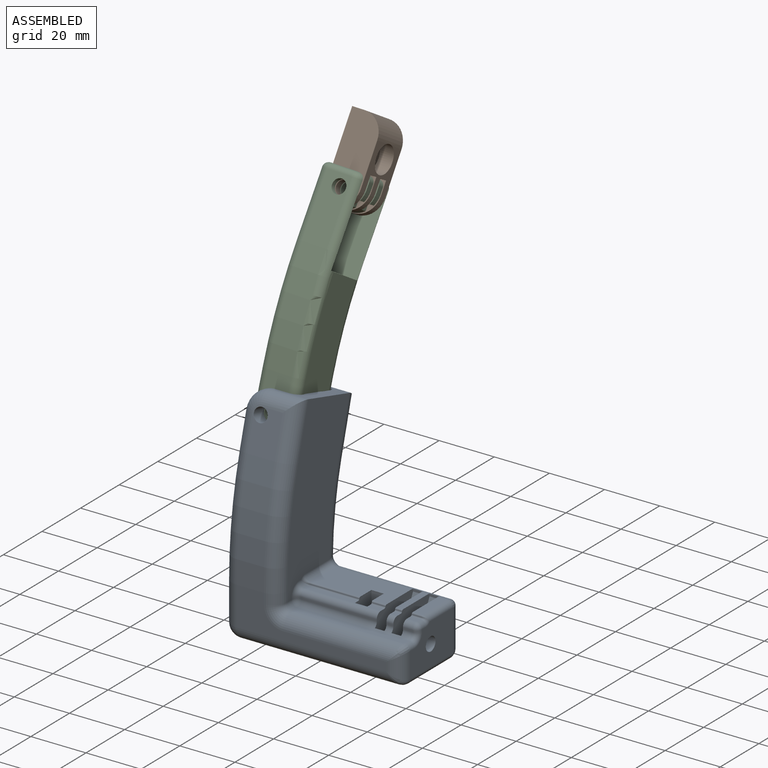
[diagram: assembled view]
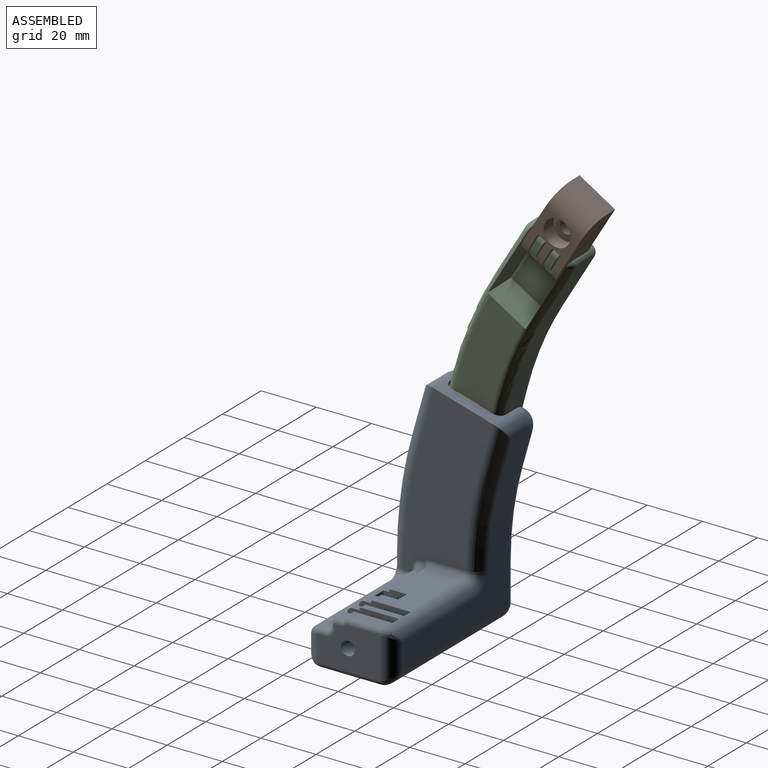
[diagram: assembled view, second angle]
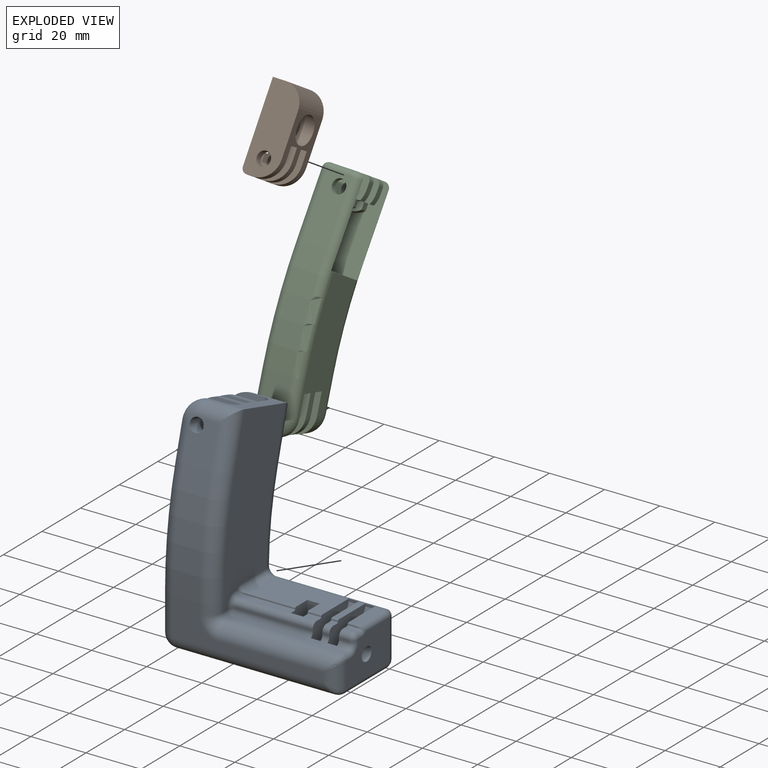
[diagram: exploded view]
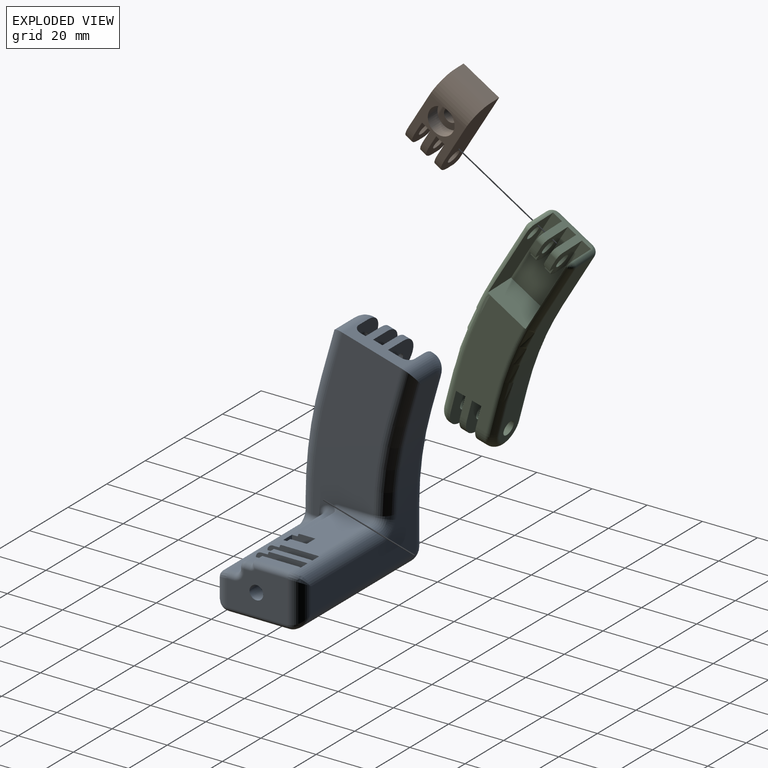
[diagram: exploded view, second angle]
ASSEMBLY  parts=3 mates=2
PART A: 139 faces, bbox 64.5x43.3x79.1 mm
  f0: plane 12.8x3.5mm, normal (0,0,1), area 44.8mm2, adj f64,f77,f90,f113
  f1: plane 12.8x2.5mm, normal (0,0,1), area 32mm2, adj f55,f71,f78,f113
  f2: plane 62.45x32.09mm, normal (1,0,0), area 1230.1mm2, adj f4,f98,f100,f101,f102,f104,f105,f107
  f3: plane 57.5x22mm, normal (0,0,-1), area 1041.3mm2, adj f21,f24,f27,f41,f44,f88,f106,f119
  f4: plane 21.17x12.5mm, normal (0,0.27,0.96), area 152.6mm2, adj f2,f13,f14,f15,f16,f19,f22,f24
  f5: plane 59.63x8.55mm, normal (-1,0,0), area 30.2mm2, adj f25,f26,f27,f33,f114,f116,f118,f119
  f6: plane 65.48x9.36mm, normal (-1,0,0), area 33.2mm2, adj f21,f22,f23,f28,f130,f132,f134,f135
  f7: plane 54.5x14mm, normal (0,1,0), area 550.8mm2, adj f10,f111,f113,f117,f118,f122
  f8: plane 54.5x14mm, normal (0,-1,0), area 295.1mm2, adj f9,f125,f127,f129,f133,f135,f138
  f9: cylinder r=149.95mm len=40.82mm, axis (-1,0,0), area 413.4mm2, adj f8,f11,f123,f132
  f10: cylinder r=117.95mm len=32.11mm, axis (-1,0,0), area 325.4mm2, adj f7,f12,f107,f109,f116
  f11: plane 14.43x10mm, normal (0,-0.96,0.27), area 129mm2, adj f9,f36,f124,f126,f130
  f12: plane 14.43x10mm, normal (0,0.96,-0.27), area 148.7mm2, adj f10,f108,f110,f112,f114
  f13: plane 3.44x1.19mm, normal (-1,0,0), area 0.9mm2, adj f4,f14,f15,f20
  f14: plane 15.5x14.19mm, normal (0,-0.96,0.27), area 184.7mm2, adj f4,f13,f17,f20,f24,f31,f32,f38
  f15: plane 15.5x14.19mm, normal (0,0.96,-0.27), area 184.7mm2, adj f4,f13,f18,f20,f24,f29,f30,f37
  f16: plane 15.5x14.19mm, normal (0,0.96,-0.27), area 184.8mm2, adj f4,f17,f24,f31,f32,f38
  f17: plane 8x2.41mm, normal (0,-0.27,-0.96), area 20mm2, adj f14,f16,f24,f31
  f18: plane 8x2.41mm, normal (0,-0.27,-0.96), area 20mm2, adj f15,f19,f24,f29
  f19: plane 15.5x14.19mm, normal (0,-0.96,0.27), area 184.8mm2, adj f4,f18,f24,f29,f30,f37
  f20: plane 3.37x0.95mm, normal (0,-0.27,-0.96), area 1.7mm2, adj f13,f14,f15,f24
  f21: plane 19x12.5mm, normal (0,1,0), area 232.1mm2, adj f3,f6,f23,f44,f134
  f22: plane 19.25x12.5mm, normal (0,0.96,-0.27), area 218.3mm2, adj f4,f6,f23,f28,f36,f42
  f23: cylinder r=144.45mm len=39.32mm, axis (-1,0,0), area 497.8mm2, adj f6,f21,f22,f43
  f24: plane 76.75x25.22mm, normal (-1,0,0), area 1064.3mm2, adj f3,f4,f14,f15,f16,f17,f18,f19
  f25: plane 19.25x12.5mm, normal (0,-0.96,0.27), area 218.3mm2, adj f4,f5,f26,f33,f34,f39
  f26: cylinder r=123.45mm len=33.6mm, axis (-1,0,0), area 425.4mm2, adj f5,f25,f27,f40
  f27: plane 19x12.5mm, normal (0,-1,0), area 232.1mm2, adj f3,f5,f26,f41,f119
  f28: cylinder r=7.5mm len=7.5mm, axis (0,-0.96,0.27), area 5.9mm2, adj f4,f6,f22,f128
  f29: cylinder r=7.5mm len=7.78mm, axis (0,-0.96,0.27), area 29.1mm2, adj f15,f18,f19,f30
  f30: cylinder r=7.5mm len=7.78mm, axis (0,-0.96,0.27), area 29.1mm2, adj f4,f15,f19,f29
  f31: cylinder r=7.5mm len=7.78mm, axis (0,-0.96,0.27), area 29.1mm2, adj f14,f16,f17,f32
  f32: cylinder r=7.5mm len=7.78mm, axis (0,-0.96,0.27), area 29.1mm2, adj f4,f14,f16,f31
  f33: cylinder r=7.5mm len=7.5mm, axis (0,-0.96,0.27), area 5.9mm2, adj f4,f5,f25,f112
  f34: cylinder r=2.5mm len=5.22mm, axis (0,0.96,-0.27), area 23.6mm2, adj f25,f35
  f35: plane 5x4.81mm, normal (0,-0.96,0.27), area 19.6mm2, adj f34
  f36: cylinder r=2.5mm len=6.65mm, axis (0,0.96,-0.27), area 86.4mm2, adj f11,f22,f128
  f37: cylinder r=2.5mm len=5.49mm, axis (0,0.96,-0.27), area 39.3mm2, adj f15,f19
  f38: cylinder r=2.5mm len=5.49mm, axis (0,0.96,-0.27), area 39.3mm2, adj f14,f16
  f39: cylinder r=3mm len=20.06mm, axis (0,-0.27,-0.96), area 94.2mm2, adj f4,f24,f25,f40
  f40: torus R=126.45mm, axis (-1,0,0), area 161.8mm2, adj f24,f26,f39,f41
  f41: cylinder r=3mm len=19mm, axis (0,0,-1), area 89.5mm2, adj f3,f24,f27,f40
  f42: cylinder r=3mm len=20.06mm, axis (0,0.27,0.96), area 94.2mm2, adj f4,f22,f24,f43
  f43: torus R=141.45mm, axis (-1,0,0), area 186.2mm2, adj f23,f24,f42,f44
  f44: cylinder r=3mm len=19mm, axis (0,0,1), area 89.5mm2, adj f3,f21,f24,f43
  f45: plane 27.5x2mm, normal (0,0,1), area 47.1mm2, adj f46,f47,f58,f72,f82,f86,f87,f102
  f46: cylinder r=0.5mm len=18mm, axis (1,0,0), area 14.1mm2, adj f45,f48,f86,f103
  f47: cylinder r=0.5mm len=5mm, axis (1,0,0), area 3.9mm2, adj f45,f49,f72,f87
  f48: cylinder r=0.5mm len=18mm, axis (-1,0,0), area 14.1mm2, adj f46,f51,f86,f104
  f49: cylinder r=0.5mm len=5mm, axis (-1,0,0), area 3.9mm2, adj f47,f51,f72,f87
  f50: cylinder r=2.5mm len=20mm, axis (-1,0,0), area 314.2mm2, adj f86,f89
  f51: plane 27.5x12.8mm, normal (0,0,1), area 326.1mm2, adj f48,f49,f72,f85,f86,f87,f105,f113
  f52: plane 2.5x2mm, normal (0,0,1), area 5mm2, adj f54,f56,f71,f78
  f53: plane 2.5x0.75mm, normal (0,-1,0), area 1.9mm2, adj f56,f66,f71,f78
  f54: cylinder r=0.5mm len=2.5mm, axis (1,0,0), area 2mm2, adj f52,f55,f71,f78
  f55: cylinder r=0.5mm len=2.5mm, axis (-1,0,0), area 2mm2, adj f1,f54,f71,f78
  f56: cylinder r=2mm len=2.5mm, axis (-1,0,0), area 7.9mm2, adj f52,f53,f71,f78
  f57: plane 27.5x0.75mm, normal (0,-1,0), area 20.6mm2, adj f58,f66,f72,f100
  f58: cylinder r=2mm len=27.5mm, axis (-1,0,0), area 86.4mm2, adj f45,f57,f72,f101
  f59: plane 3.5x2mm, normal (0,0,1), area 7mm2, adj f63,f65,f77,f93
  f60: plane 3.5x0.75mm, normal (0,-1,0), area 2.6mm2, adj f65,f66,f77,f95
  f61: plane 40.5x2.2mm, normal (0,0,1), area 89.1mm2, adj f66,f97,f98,f129
  f62: plane 22x15mm, normal (1,0,0), area 274.8mm2, adj f80,f90,f92,f93,f95,f96,f97,f106
  f63: cylinder r=0.5mm len=3.5mm, axis (1,0,0), area 2.7mm2, adj f59,f64,f77,f92
  f64: cylinder r=0.5mm len=3.5mm, axis (-1,0,0), area 2.7mm2, adj f0,f63,f77,f91
  f65: cylinder r=2mm len=3.5mm, axis (-1,0,0), area 11mm2, adj f59,f60,f77,f94
  f66: cylinder r=2mm len=40.5mm, axis (1,0,0), area 112.6mm2, adj f53,f57,f60,f61,f67,f71,f72,f73
  f67: plane 4.02x3.5mm, normal (0,1,0), area 14.1mm2, adj f66,f68,f71,f72
  f68: cylinder r=7.5mm len=14.3mm, axis (-1,0,0), area 71mm2, adj f67,f69,f71,f72
  f69: plane 11.67x5.44mm, normal (0,-0.91,0.42), area 45.1mm2, adj f68,f70,f71,f72
  f70: plane 3.5x0.91mm, normal (0,-1,0), area 3.2mm2, adj f69,f71,f72,f113
  f71: plane 19.74x17mm, normal (-1,0,0), area 229.9mm2, adj f1,f52,f53,f54,f55,f56,f66,f67
  f72: plane 19.74x17mm, normal (1,0,0), area 229.9mm2, adj f45,f47,f49,f51,f57,f58,f66,f67
  f73: plane 4.02x3.5mm, normal (0,1,0), area 14.1mm2, adj f66,f74,f77,f78
  f74: cylinder r=7.5mm len=14.3mm, axis (-1,0,0), area 71mm2, adj f73,f75,f77,f78
  f75: plane 11.67x5.44mm, normal (0,-0.91,0.42), area 45.1mm2, adj f74,f76,f77,f78
  f76: plane 3.5x0.91mm, normal (0,-1,0), area 3.2mm2, adj f75,f77,f78,f113
  f77: plane 19.74x17mm, normal (-1,0,0), area 229.9mm2, adj f0,f59,f60,f63,f64,f65,f66,f73
  f78: plane 19.74x17mm, normal (1,0,0), area 229.9mm2, adj f1,f52,f53,f54,f55,f56,f66,f73
  f79: cylinder r=2.5mm len=5mm, axis (-1,0,0), area 39.3mm2, adj f71,f78
  f80: cylinder r=2.5mm len=5.5mm, axis (-1,0,0), area 86.4mm2, adj f62,f77
  f81: cylinder r=2.5mm len=5mm, axis (-1,0,0), area 78.5mm2, adj f72,f87
  f82: plane 10.95x4.5mm, normal (0,1,0), area 49.3mm2, adj f45,f83,f86,f87
  f83: plane 4.5x4.25mm, normal (0,0.5,0.87), area 18mm2, adj f82,f84,f86,f87,f88
  f84: plane 4.5x4.25mm, normal (0,-0.5,0.87), area 18mm2, adj f83,f85,f86,f87,f88
  f85: plane 11.95x4.5mm, normal (0,-1,0), area 53.8mm2, adj f51,f84,f86,f87
  f86: plane 14.41x8.5mm, normal (1,0,0), area 90.2mm2, adj f45,f46,f48,f50,f51,f82,f83,f84
  f87: plane 14.41x8.5mm, normal (-1,0,0), area 90.2mm2, adj f45,f47,f49,f51,f81,f82,f83,f84
  f88: cylinder r=1.5mm len=5.46mm, axis (0,0,1), area 48.5mm2, adj f3,f83,f84
  f89: plane 5x5mm, normal (1,0,0), area 19.6mm2, adj f50
  f90: cylinder r=2mm len=12.8mm, axis (0,-1,0), area 38.9mm2, adj f0,f62,f91,f115
  f91: bspline ~2x2mm, area 1.4mm2, adj f64,f90,f92
  f92: torus R=2.5mm, axis (1,0,0), area 4.5mm2, adj f62,f63,f91,f93
  f93: cylinder r=2mm len=2mm, axis (0,-1,0), area 6.3mm2, adj f59,f62,f92,f94
  f94: sphere r=2mm, area 6.3mm2, adj f65,f93,f95
  f95: cylinder r=2mm len=2mm, axis (0,0,-1), area 2.4mm2, adj f60,f62,f94,f96
  f96: torus R=4mm, axis (1,0,0), area 13.5mm2, adj f62,f66,f95,f97
  f97: cylinder r=2mm len=2.2mm, axis (0,-1,0), area 6.9mm2, adj f61,f62,f96,f131
  f98: cylinder r=2mm len=2.2mm, axis (0,-1,0), area 6.9mm2, adj f2,f61,f99,f127
  f99: sphere r=2mm, area 6.3mm2, adj f66,f98,f100
  f100: cylinder r=2mm len=2mm, axis (0,0,-1), area 2.4mm2, adj f2,f57,f99,f101
  f101: torus R=4mm, axis (-1,0,0), area 13.5mm2, adj f2,f58,f100,f102
  f102: cylinder r=2mm len=2mm, axis (0,-1,0), area 5mm2, adj f2,f45,f101,f103
  f103: bspline ~2x2mm, area 1.4mm2, adj f46,f102,f104
  f104: torus R=2.5mm, axis (-1,0,0), area 4.5mm2, adj f2,f48,f103,f105
  f105: cylinder r=2mm len=12.82mm, axis (0,-1,0), area 40.2mm2, adj f2,f51,f104,f109,f111
  f106: cylinder r=2mm len=22mm, axis (0,1,0), area 69.1mm2, adj f3,f62,f120,f136
  f107: torus R=122.95mm, axis (-1,0,0), area 244mm2, adj f2,f10,f108,f109
  f108: cylinder r=5mm len=20.61mm, axis (0,-0.27,-0.96), area 142.8mm2, adj f2,f12,f107,f110
  f109: bspline ~5.11x5.04mm, area 8.3mm2, adj f10,f105,f107,f111
  f110: cylinder r=5mm len=12.5mm, axis (1,0,0), area 83.9mm2, adj f4,f12,f108,f112
  f111: torus R=7mm, axis (0,-1,0), area 38.4mm2, adj f7,f105,f109,f113
  f112: torus R=2.5mm, axis (0,0.96,-0.27), area 70.1mm2, adj f12,f33,f110,f114
  f113: cylinder r=5mm len=40.5mm, axis (1,0,0), area 302.9mm2, adj f0,f1,f7,f51,f70,f71,f72,f76
  f114: cylinder r=5mm len=13.39mm, axis (0,-0.27,-0.96), area 98.2mm2, adj f5,f12,f112,f116
  f115: bspline ~5.23x5mm, area 16.7mm2, adj f90,f113,f117
  f116: torus R=122.95mm, axis (1,0,0), area 259.3mm2, adj f5,f10,f114,f118
  f117: cylinder r=5mm len=15mm, axis (0,0,-1), area 100.7mm2, adj f7,f62,f115,f120
  f118: cylinder r=5mm len=14mm, axis (0,0,-1), area 110mm2, adj f5,f7,f116,f121
  f119: cylinder r=5mm len=5mm, axis (0,1,0), area 3.9mm2, adj f3,f5,f27,f121
  f120: bspline ~5.91x5mm, area 16.7mm2, adj f106,f117,f122
  f121: sphere r=5mm, area 39.3mm2, adj f118,f119,f122
  f122: cylinder r=5mm len=57.5mm, axis (1,0,0), area 443mm2, adj f3,f7,f120,f121
  f123: torus R=144.95mm, axis (-1,0,0), area 320.7mm2, adj f2,f9,f124,f125
  f124: cylinder r=5mm len=20.61mm, axis (0,-0.27,-0.96), area 142.8mm2, adj f2,f11,f123,f126
  f125: cylinder r=5mm len=5mm, axis (0,0,1), area 29.5mm2, adj f2,f8,f123,f127
  f126: cylinder r=5mm len=12.5mm, axis (-1,0,0), area 83.9mm2, adj f4,f11,f124,f128
  f127: torus R=7mm, axis (0,-1,0), area 47.1mm2, adj f8,f98,f125,f129
  f128: torus R=2.5mm, axis (0,-0.96,0.27), area 70.1mm2, adj f28,f36,f126,f130
  f129: cylinder r=5mm len=40.5mm, axis (-1,0,0), area 309.5mm2, adj f8,f61,f127,f131
  f130: cylinder r=5mm len=13.39mm, axis (0,-0.27,-0.96), area 98.2mm2, adj f6,f11,f128,f132
  f131: bspline ~5.23x5mm, area 16.7mm2, adj f97,f129,f133
  f132: torus R=144.95mm, axis (1,0,0), area 320.7mm2, adj f6,f9,f130,f135
  f133: cylinder r=5mm len=9.25mm, axis (0,0,1), area 55.5mm2, adj f8,f62,f131,f136
  f134: cylinder r=5mm len=5mm, axis (0,1,0), area 3.9mm2, adj f3,f6,f21,f137
  f135: cylinder r=5mm len=14mm, axis (0,0,1), area 110mm2, adj f6,f8,f132,f137
  f136: bspline ~5.23x5mm, area 16.7mm2, adj f106,f133,f138
  f137: sphere r=5mm, area 39.3mm2, adj f134,f135,f138
  f138: cylinder r=5mm len=57.5mm, axis (-1,0,0), area 443mm2, adj f3,f8,f136,f137
PART B: 35 faces, bbox 12x15x30 mm
  f0: plane 5.89x2.5mm, normal (-1,0,0), area 14.7mm2, adj f4,f6,f23,f33
  f1: plane 28x15mm, normal (-1,0,0), area 141mm2, adj f3,f7,f10,f11,f12,f22,f24,f25
  f2: plane 9x3.5mm, normal (0,0,-1), area 31.5mm2, adj f3,f4,f14,f28
  f3: plane 12.25x12mm, normal (0,-1,0), area 101.3mm2, adj f1,f2,f13,f14,f17,f21,f22,f28
  f4: plane 12.25x12mm, normal (0,1,0), area 101.3mm2, adj f0,f2,f9,f14,f16,f19,f23,f28
  f5: plane 9x3.5mm, normal (0,0,-1), area 31.5mm2, adj f6,f7,f14,f28
  f6: plane 12.25x12mm, normal (0,-1,0), area 101.3mm2, adj f0,f5,f9,f14,f16,f19,f23,f28
  f7: plane 12.25x12mm, normal (0,1,0), area 101.3mm2, adj f1,f5,f8,f14,f15,f18,f24,f28
  f8: plane 2.75x2.5mm, normal (0,0,-1), area 6.9mm2, adj f7,f10,f18,f32
  f9: plane 2.5x2.5mm, normal (0,0,-1), area 6.3mm2, adj f4,f6,f19,f33
  f10: plane 30x12mm, normal (0,-1,0), area 315.4mm2, adj f1,f8,f11,f14,f15,f18,f20,f32
  f11: plane 15x4.5mm, normal (0,0,1), area 67.5mm2, adj f1,f10,f12,f20
  f12: plane 30x12mm, normal (0,1,0), area 315.4mm2, adj f1,f11,f13,f14,f17,f20,f21,f34
  f13: plane 2.75x2.5mm, normal (0,0,-1), area 6.9mm2, adj f3,f12,f21,f34
  f14: plane 15.01x15.01mm, normal (1,0,0), area 117.8mm2, adj f2,f3,f4,f5,f6,f7,f10,f12
  f15: cylinder r=2.5mm len=5mm, axis (0,-1,0), area 43.2mm2, adj f7,f10
  f16: cylinder r=2.5mm len=5mm, axis (0,-1,0), area 39.3mm2, adj f4,f6
  f17: cylinder r=2.5mm len=5mm, axis (0,-1,0), area 43.2mm2, adj f3,f12
  f18: cylinder r=7.5mm len=7.5mm, axis (0,1,0), area 32.4mm2, adj f7,f8,f10,f14
  f19: cylinder r=7.5mm len=7.5mm, axis (0,1,0), area 29.5mm2, adj f4,f6,f9,f14
  f20: cylinder r=7.5mm len=15mm, axis (0,-1,0), area 176mm2, adj f10,f11,f12,f14,f31
  f21: cylinder r=7.5mm len=7.5mm, axis (0,1,0), area 32.4mm2, adj f3,f12,f13,f14
  f22: plane 3x0.8mm, normal (0,0,1), area 2.4mm2, adj f1,f3,f27,f28
  f23: plane 3x2.5mm, normal (0,0,1), area 7.5mm2, adj f0,f4,f6,f28
  f24: plane 3x0.8mm, normal (0,0,1), area 2.4mm2, adj f1,f7,f25,f28
  f25: plane 20.1x3mm, normal (0,1,0), area 60.3mm2, adj f1,f24,f26,f28
  f26: plane 11.1x3mm, normal (0,0,-1), area 33.3mm2, adj f1,f25,f27,f28
  f27: plane 20.1x3mm, normal (0,-1,0), area 60.3mm2, adj f1,f22,f26,f28
  f28: plane 20.1x11.1mm, normal (-1,0,0), area 172.9mm2, adj f2,f3,f4,f5,f6,f7,f22,f23
  f29: cylinder r=2.5mm len=5mm, axis (1,0,0), area 62.8mm2, adj f28,f30
  f30: plane 9.75x9.75mm, normal (1,0,0), area 55mm2, adj f29,f31
  f31: cylinder r=4.88mm len=9.75mm, axis (1,0,0), area 153.2mm2, adj f14,f20,f30
  f32: cylinder r=2mm len=2.75mm, axis (0,-1,0), area 8.6mm2, adj f1,f7,f8,f10
  f33: cylinder r=2mm len=2.5mm, axis (0,-1,0), area 7.9mm2, adj f0,f4,f6,f9
  f34: cylinder r=2mm len=2.75mm, axis (0,-1,0), area 8.6mm2, adj f1,f3,f12,f13
PART C: 69 faces, bbox 16.3x30.9x83.1 mm
  f0: plane 12x11.75mm, normal (0,1,0), area 105.7mm2, adj f4,f5,f8,f11,f31,f32,f41,f44
  f1: plane 12x11.75mm, normal (0,-1,0), area 105.7mm2, adj f4,f5,f8,f11,f31,f32,f41,f44
  f2: plane 12x11.75mm, normal (0,1,0), area 105.7mm2, adj f6,f7,f8,f10,f32,f33,f40,f42
  f3: plane 12x11.75mm, normal (0,-1,0), area 105.7mm2, adj f6,f7,f8,f10,f32,f33,f40,f42
  f4: cylinder r=7.5mm len=3.64mm, axis (0,-1,0), area 9.5mm2, adj f0,f1,f11,f44
  f5: cylinder r=7.5mm len=4.5mm, axis (0,-1,0), area 12.1mm2, adj f0,f1,f31,f45
  f6: cylinder r=7.5mm len=3.64mm, axis (0,-1,0), area 9.5mm2, adj f2,f3,f10,f43
  f7: cylinder r=7.5mm len=4.5mm, axis (0,-1,0), area 12.1mm2, adj f2,f3,f33,f42
  f8: plane 16x11mm, normal (0,0,-1), area 65.6mm2, adj f0,f1,f2,f3,f32,f62,f63,f64
  f9: plane 44.77x22.08mm, normal (-1,0,0), area 558.3mm2, adj f19,f20,f21,f22,f23,f24,f25,f26
  f10: plane 2.5x2.25mm, normal (-1,0,0), area 5.6mm2, adj f2,f3,f6,f67
  f11: plane 2.5x2.25mm, normal (-1,0,0), area 5.6mm2, adj f0,f1,f4,f68
  f12: plane 22.87x9mm, normal (0,-1,0), area 186.2mm2, adj f13,f39,f53,f59,f61
  f13: cylinder r=143.95mm len=39.18mm, axis (-1,0,0), area 357.2mm2, adj f12,f14,f54,f58
  f14: plane 16.36x9mm, normal (0,-0.96,0.27), area 124.7mm2, adj f13,f29,f55,f56,f57
  f15: plane 16.36x9mm, normal (0,0.96,-0.27), area 124.7mm2, adj f16,f28,f48,f49,f50
  f16: cylinder r=123.95mm len=33.74mm, axis (-1,0,0), area 307.5mm2, adj f15,f17,f47,f51
  f17: plane 22.87x9mm, normal (0,1,0), area 205.9mm2, adj f16,f46,f52,f65
  f18: plane 73.27x22.2mm, normal (1,0,0), area 957.3mm2, adj f19,f20,f21,f22,f23,f24,f25,f26
  f19: plane 15x3.37mm, normal (0,0.27,0.96), area 52.5mm2, adj f9,f18,f20,f23
  f20: plane 15x14.43mm, normal (0,-0.96,0.27), area 181.2mm2, adj f9,f18,f19,f26,f30
  f21: plane 15x14.43mm, normal (0,0.96,-0.27), area 181.2mm2, adj f9,f18,f22,f26,f30
  f22: plane 15x3.37mm, normal (0,0.27,0.96), area 52.5mm2, adj f9,f18,f21,f24
  f23: plane 15x14.67mm, normal (0,0.96,-0.27), area 185mm2, adj f9,f18,f19,f25,f29
  f24: plane 15x14.67mm, normal (0,-0.96,0.27), area 185mm2, adj f9,f18,f22,f27,f28
  f25: cylinder r=7.5mm len=15mm, axis (0,0.96,-0.27), area 17.7mm2, adj f9,f18,f23,f56
  f26: cylinder r=7.5mm len=15mm, axis (0,0.96,-0.27), area 58.9mm2, adj f9,f18,f20,f21
  f27: cylinder r=7.5mm len=15mm, axis (0,-0.96,0.27), area 88.4mm2, adj f9,f18,f24,f49
  f28: cylinder r=2.5mm len=7.86mm, axis (0,0.96,-0.27), area 106mm2, adj f15,f24
  f29: cylinder r=2.5mm len=5.83mm, axis (0,0.96,-0.27), area 58.9mm2, adj f14,f23
  f30: cylinder r=2.5mm len=5.49mm, axis (0,0.96,-0.27), area 39.3mm2, adj f20,f21
  f31: plane 4.5x2.5mm, normal (0,0,1), area 11.3mm2, adj f0,f1,f5,f32
  f32: plane 30.5x16mm, normal (-1,0,0), area 429.2mm2, adj f0,f1,f2,f3,f8,f31,f33,f34
  f33: plane 4.5x2.5mm, normal (0,0,1), area 11.3mm2, adj f2,f3,f7,f32
  f34: plane 30.56x11.89mm, normal (0,1,0), area 340.1mm2, adj f32,f35,f39,f58,f59,f60,f61
  f35: plane 16.01x12mm, normal (0,0,-1), area 191.9mm2, adj f9,f32,f34,f36,f51,f58
  f36: plane 30.57x11.94mm, normal (0,-1,0), area 340.3mm2, adj f32,f35,f38,f51,f52,f65,f66
  f37: plane 5x5mm, normal (0,-1,0), area 19.6mm2, adj f38
  f38: cylinder r=2.5mm len=5mm, axis (0,-1,0), area 15.7mm2, adj f36,f37
  f39: cylinder r=2.5mm len=5mm, axis (0,-1,0), area 31.4mm2, adj f12,f34
  f40: cylinder r=2.5mm len=5mm, axis (0,-1,0), area 39.3mm2, adj f2,f3
  f41: cylinder r=2.5mm len=5mm, axis (0,-1,0), area 39.3mm2, adj f0,f1
  f42: plane 2.5x2.36mm, normal (-1,0,0), area 5.9mm2, adj f2,f3,f7,f43
  f43: plane 2.5x2.06mm, normal (0,0,1), area 5.1mm2, adj f2,f3,f6,f42
  f44: plane 2.5x2.06mm, normal (0,0,1), area 5.1mm2, adj f0,f1,f4,f45
  f45: plane 2.5x2.36mm, normal (-1,0,0), area 5.9mm2, adj f0,f1,f5,f44
  f46: cylinder r=3mm len=22.87mm, axis (0,0,1), area 107.8mm2, adj f17,f18,f47,f64
  f47: torus R=126.95mm, axis (-1,0,0), area 162.4mm2, adj f16,f18,f46,f48
  f48: cylinder r=3mm len=12.84mm, axis (0,0.27,0.96), area 58.9mm2, adj f15,f18,f47,f49
  f49: torus R=4.5mm, axis (0,-0.96,0.27), area 94.9mm2, adj f15,f27,f48,f50
  f50: cylinder r=3mm len=12.84mm, axis (0,-0.27,-0.96), area 58.9mm2, adj f9,f15,f49,f51
  f51: torus R=126.95mm, axis (-1,0,0), area 157.1mm2, adj f9,f16,f35,f36,f50,f52
  f52: cylinder r=3mm len=22.87mm, axis (0,0,-1), area 84.5mm2, adj f17,f36,f51,f66
  f53: cylinder r=3mm len=22.87mm, axis (0,0,-1), area 107.8mm2, adj f12,f18,f54,f62
  f54: torus R=140.95mm, axis (-1,0,0), area 185.6mm2, adj f13,f18,f53,f55
  f55: cylinder r=3mm len=12.84mm, axis (0,-0.27,-0.96), area 58.9mm2, adj f14,f18,f54,f56
  f56: torus R=4.5mm, axis (0,-0.96,0.27), area 94.9mm2, adj f14,f25,f55,f57
  f57: cylinder r=3mm len=12.84mm, axis (0,0.27,0.96), area 58.9mm2, adj f9,f14,f56,f58
  f58: torus R=140.95mm, axis (-1,0,0), area 179.5mm2, adj f9,f13,f34,f35,f57,f59
  f59: cylinder r=3mm len=22.87mm, axis (0,0,1), area 84.5mm2, adj f12,f34,f58,f60
  f60: torus R=1mm, axis (0,0,-1), area 7.9mm2, adj f34,f59,f61
  f61: cylinder r=2mm len=9mm, axis (1,0,0), area 28.3mm2, adj f12,f34,f60,f62
  f62: torus R=1mm, axis (0,0,-1), area 11.2mm2, adj f8,f53,f61,f63
  f63: cylinder r=2mm len=14mm, axis (0,1,0), area 44mm2, adj f8,f18,f62,f64
  f64: torus R=1mm, axis (0,0,-1), area 11.2mm2, adj f8,f46,f63,f65
  f65: cylinder r=2mm len=9mm, axis (-1,0,0), area 28.3mm2, adj f17,f36,f64,f66
  f66: torus R=1mm, axis (0,0,-1), area 7.9mm2, adj f36,f52,f65
  f67: cylinder r=2mm len=2.5mm, axis (0,-1,0), area 7.9mm2, adj f2,f3,f8,f10
  f68: cylinder r=2mm len=2.5mm, axis (0,-1,0), area 7.9mm2, adj f0,f1,f8,f11
PLACE A at identity fixed
PLACE B rot(axis=(-1,0.04,0.01),31.6deg) t=(5.52,41.34,126.86)mm
PLACE C rot(axis=(0,-0.96,0.27),178deg) t=(-81.96,32.06,113.34)mm
MATE revolute A.f112 <-> C.f49  axis (0,-0.96,0.27) through (-42,-6.64,62.34)mm
MATE revolute C.f38 <-> B.f15  axis (0.01,-0.85,0.52) through (-38.08,28.3,124.95)mm
